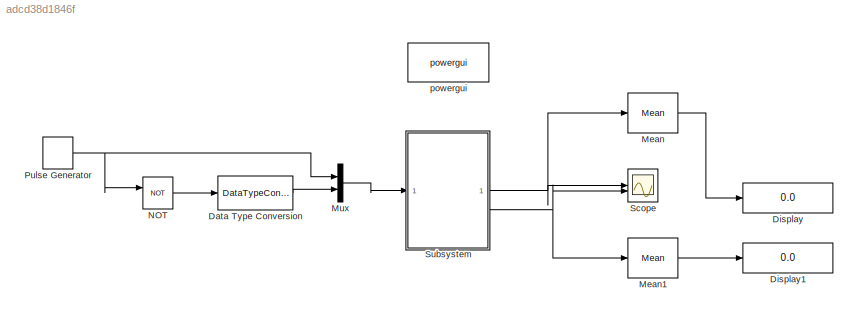
MODEL slx_adcd38d1846f
KIND model
CONFIG AbsTol = auto
CONFIG EnableMultiTasking = off
CONFIG FixedStep = auto
CONFIG MaxStep = 1e-4
CONFIG MinStep = auto
CONFIG RelTol = 1e-5
CONFIG SampleTimeConstraint = Unconstrained
CONFIG SolverName = ode45
CONFIG StartTime = 0.0
CONFIG StopTime = 0.3
BLOCK [DataTypeConversion] Data Type Conversion
  OutDataTypeStr = double
  RndMeth = Floor
  SaturateOnIntegerOverflow = off
BLOCK [Display] Display
  Decimation = 1
BLOCK [Display] Display1
  Decimation = 1
BLOCK [Reference] Mean  REF=spsMeanLib/Mean
  LibrarySourceBlock = sps_lib/Sensors and Measurements/Mean
  SourceBlock = spsMeanLib/Mean
  SourceType = Mean
BLOCK [Reference] Mean1  REF=spsMeanLib/Mean
  LibrarySourceBlock = sps_lib/Sensors and Measurements/Mean
  SourceBlock = spsMeanLib/Mean
  SourceType = Mean
BLOCK [Mux] Mux
  DisplayOption = bar
  Inputs = 2
BLOCK [Logic] NOT
  AllPortsSameDT = off
  IconShape = distinctive
  Operator = NOT
  OutDataTypeStr = boolean
BLOCK [DiscretePulseGenerator] Pulse Generator
  Period = T
  PulseType = Time based
  PulseWidth = alpha
BLOCK [Scope] Scope
  Floating = off
  NumInputPorts = 2
  ScopeSpecificationString = Simulink.scopes.TimeScopeBlockCfg('CurrentConfiguration', extmgr.ConfigurationSet(extmgr.Configuration('Core','General UI',true),extmgr.Configuration('Core','Source UI',true),extmgr.Configuration('Sources','WiredSimulink',true),extmgr.Configuration('Visuals','Time Domain',true,'SerializedDisplays',{struct('MinYLimReal','-0.07807','MaxYLimReal','0.09376','YLabelReal','','MinYLimMag','0.00000','MaxY...<+2206ch>
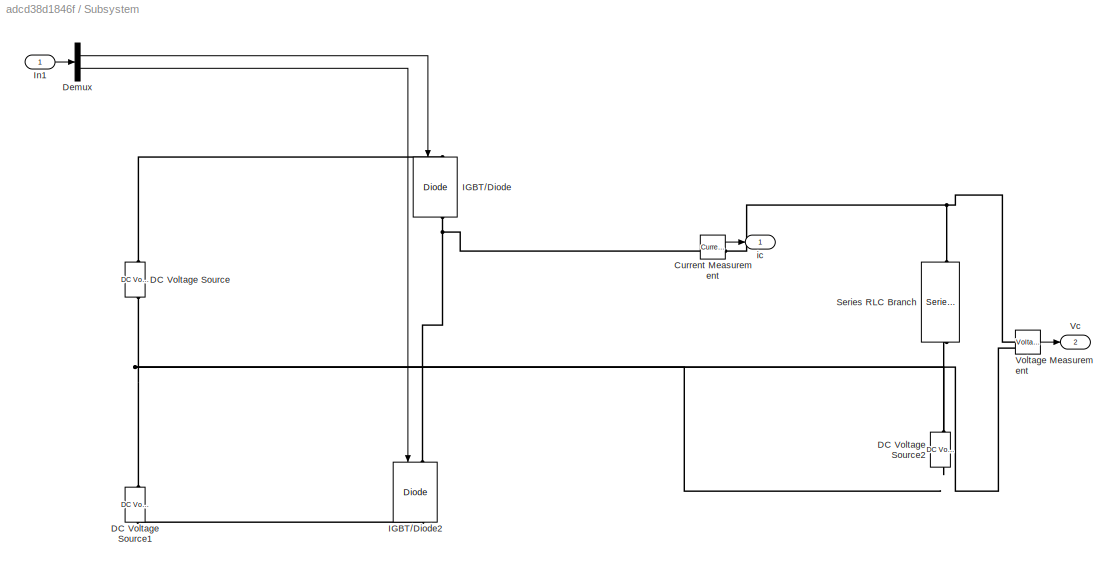
BLOCK [SubSystem] Subsystem
BLOCK [Reference] Subsystem/Current Measurement  REF=spsCurrentMeasurementLib/Current Measurement
  LibrarySourceBlock = sps_lib/Sensors and Measurements/Current Measurement
  SourceBlock = spsCurrentMeasurementLib/Current Measurement
  SourceType = Current Measurement
  UserDataPersistent = on
BLOCK [Reference] Subsystem/DC Voltage Source  REF=spsDCVoltageSourceLib/DC Voltage Source
  LibrarySourceBlock = sps_lib/Sources/DC Voltage Source
  SourceBlock = spsDCVoltageSourceLib/DC Voltage Source
  SourceType = DC Voltage Source
BLOCK [Reference] Subsystem/DC Voltage Source1  REF=spsDCVoltageSourceLib/DC Voltage Source
  LibrarySourceBlock = sps_lib/Sources/DC Voltage Source
  SourceBlock = spsDCVoltageSourceLib/DC Voltage Source
  SourceType = DC Voltage Source
BLOCK [Reference] Subsystem/DC Voltage Source2  REF=spsDCVoltageSourceLib/DC Voltage Source
  LibrarySourceBlock = sps_lib/Sources/DC Voltage Source
  SourceBlock = spsDCVoltageSourceLib/DC Voltage Source
  SourceType = DC Voltage Source
BLOCK [Demux] Subsystem/Demux
  Outputs = 2
BLOCK [Reference] Subsystem/IGBT//Diode  REF=spsIGBTDiodeLib/IGBT//Diode
  LibrarySourceBlock = sps_lib/Power Electronics/IGBT//Diode
  NameLocation = left
  SourceBlock = spsIGBTDiodeLib/IGBT//Diode
  SourceType = IGBT/Diode
BLOCK [Reference] Subsystem/IGBT//Diode2  REF=spsIGBTDiodeLib/IGBT//Diode
  LibrarySourceBlock = sps_lib/Power Electronics/IGBT//Diode
  NameLocation = left
  SourceBlock = spsIGBTDiodeLib/IGBT//Diode
  SourceType = IGBT/Diode
BLOCK [Inport] Subsystem/In1
BLOCK [Reference] Subsystem/Series RLC Branch  REF=spsSeriesRLCBranchLib/Series RLC Branch
  LibrarySourceBlock = sps_lib/Passives/Series RLC Branch
  NameLocation = left
  SourceBlock = spsSeriesRLCBranchLib/Series RLC Branch
  SourceType = Series RLC Branch
BLOCK [Outport] Subsystem/Vc
  Port = 2
BLOCK [Reference] Subsystem/Voltage Measurement  REF=spsVoltageMeasurementLib/Voltage Measurement
  LibrarySourceBlock = sps_lib/Sensors and Measurements/Voltage Measurement
  SourceBlock = spsVoltageMeasurementLib/Voltage Measurement
  SourceType = Voltage Measurement
  UserDataPersistent = on
BLOCK [Outport] Subsystem/ic
BLOCK [Reference] powergui  REF=sps_lib/powergui
  LibrarySourceBlock = sps_lib/powergui
  Priority = 1
  SourceBlock = sps_lib/powergui
  SourceType = PSB option menu block
LINE Data Type Conversion:1 -> Mux:2
LINE Mean1:1 -> Display1:1
LINE Mean:1 -> Display:1
LINE Mux:1 -> Subsystem:1
LINE NOT:1 -> Data Type Conversion:1
NET Pulse Generator:1 -> Mux:1, NOT:1
LINE Subsystem/Current Measurement:1 -> Subsystem/ic:1
LINE Subsystem/Demux:1 -> Subsystem/IGBT//Diode:1
LINE Subsystem/Demux:2 -> Subsystem/IGBT//Diode2:1
LINE Subsystem/In1:1 -> Subsystem/Demux:1
LINE Subsystem/Voltage Measurement:1 -> Subsystem/Vc:1
NET Subsystem:1 -> Mean:1, Scope:1
NET Subsystem:2 -> Mean1:1, Scope:2
PNET net1: Subsystem/Current Measurement:LConn1 -- Subsystem/IGBT//Diode2:LConn1 -- Subsystem/IGBT//Diode:RConn1
PNET net2: Subsystem/Current Measurement:RConn1 -- Subsystem/Series RLC Branch:LConn1 -- Subsystem/Voltage Measurement:LConn1
PLINE Subsystem/DC Voltage Source1:LConn1 -- Subsystem/IGBT//Diode2:RConn1
PNET net3: Subsystem/DC Voltage Source1:RConn1 -- Subsystem/DC Voltage Source2:LConn1 -- Subsystem/DC Voltage Source:LConn1 -- Subsystem/Voltage Measurement:LConn2
PLINE Subsystem/DC Voltage Source2:RConn1 -- Subsystem/Series RLC Branch:RConn1
PLINE Subsystem/DC Voltage Source:RConn1 -- Subsystem/IGBT//Diode:LConn1
note: NET lines group one-source signal fan-out (src -> all destinations, sorted); 1:1 wires keep LINE; PNET lines group multi-terminal physical nets as a canonical sorted terminal list (undirected conserving connections); 2-terminal nets keep the pairwise PLINE form
